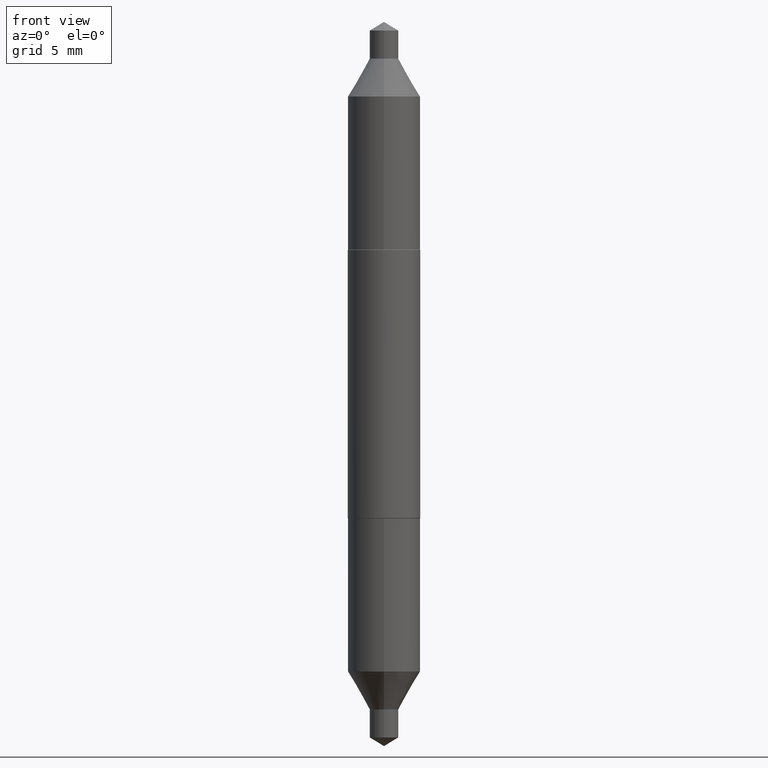
[diagram: clean part render]
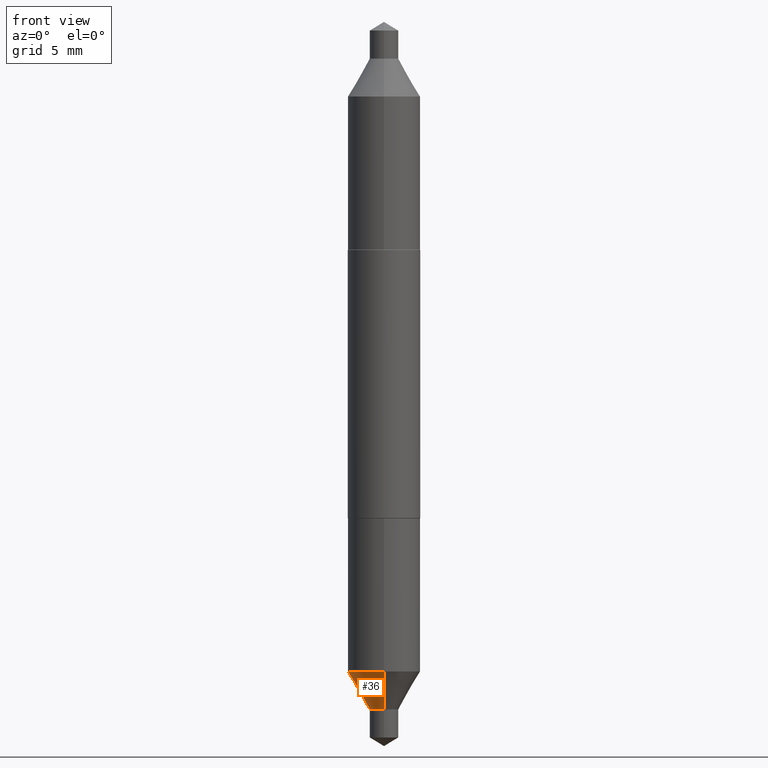
[diagram: same view with one face highlighted and labeled with its STEP entity id]
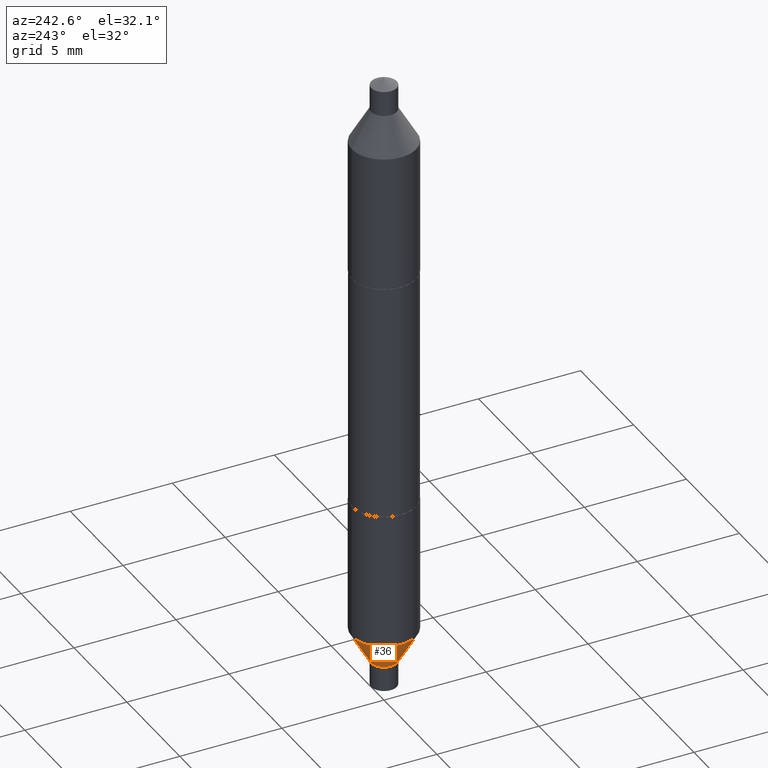
[diagram: same view with one face highlighted and labeled with its STEP entity id]
A machine part, front view. The second image highlights one B-rep face of the part: STEP entity #36.
A second angle (auxiliary view) of the same face is appended — the face is thin or edge-on in the first view.
In plain terms, the highlighted conical surface has half-angle 30 deg.
Its self-contained STEP definition (entity closure, byte-faithful):
#11 = EDGE_CURVE ( 'NONE', #676, #297, #248, .T. ) ;
#13 = EDGE_CURVE ( 'NONE', #179, #676, #324, .T. ) ;
#23 = CIRCLE ( 'NONE', #424, 0.02459999999999998646 ) ;
#28 = VERTEX_POINT ( 'NONE', #544 ) ;
#32 = ORIENTED_EDGE ( 'NONE', *, *, #640, .T. ) ;
#36 = ADVANCED_FACE ( 'NONE', ( #223 ), #411, .T. ) ;
#66 = CARTESIAN_POINT ( 'NONE',  ( 1.747935129969982313E-16, 0.02459999999999805745, -0.5570000000000000506 ) ) ;
#101 = DIRECTION ( 'NONE',  ( -2.473974349157782882E-29, 3.450659778871567200E-15, 1.000000000000000000 ) ) ;
#111 = DIRECTION ( 'NONE',  ( -2.473974349157782882E-29, 3.450659778871567200E-15, 1.000000000000000000 ) ) ;
#113 = AXIS2_PLACEMENT_3D ( 'NONE', #115, #332, #218 ) ;
#115 = CARTESIAN_POINT ( 'NONE',  ( 1.211186594922981775E-29, -1.707877200306588786E-15, -0.4922212997969229731 ) ) ;
#133 = DIRECTION ( 'NONE',  ( -3.491481338843115211E-15, -0.4999999999999913403, 0.8660254037844434816 ) ) ;
#179 = VERTEX_POINT ( 'NONE', #553 ) ;
#216 = VECTOR ( 'NONE', #133, 39.37007874015748854 ) ;
#218 = DIRECTION ( 'NONE',  ( -6.982962677686265922E-15, -1.000000000000000000, 3.304654831045479413E-15 ) ) ;
#223 = FACE_OUTER_BOUND ( 'NONE', #466, .T. ) ;
#243 = ORIENTED_EDGE ( 'NONE', *, *, #392, .T. ) ;
#245 = CARTESIAN_POINT ( 'NONE',  ( -4.329436860165363856E-16, -0.06200000000000171346, -0.4922212997969227510 ) ) ;
#248 = CIRCLE ( 'NONE', #113, 0.06200000000000000649 ) ;
#297 = VERTEX_POINT ( 'NONE', #245 ) ;
#324 = LINE ( 'NONE', #66, #702 ) ;
#332 = DIRECTION ( 'NONE',  ( -2.473974349157782882E-29, 3.450659778871567200E-15, 1.000000000000000000 ) ) ;
#392 = EDGE_CURVE ( 'NONE', #179, #28, #23, .T. ) ;
#411 = CONICAL_SURFACE ( 'NONE', #478, 0.02459999999999998646, 0.5235987755982924874 ) ;
#424 = AXIS2_PLACEMENT_3D ( 'NONE', #567, #101, #696 ) ;
#428 = DIRECTION ( 'NONE',  ( 3.552713678800440187E-15, 0.4999999999999974465, 0.8660254037844400399 ) ) ;
#452 = ORIENTED_EDGE ( 'NONE', *, *, #13, .F. ) ;
#466 = EDGE_LOOP ( 'NONE', ( #452, #243, #32, #577 ) ) ;
#476 = LINE ( 'NONE', #701, #216 ) ;
#477 = CARTESIAN_POINT ( 'NONE',  ( 1.371447437597176321E-29, -1.931406455624925954E-15, -0.5569999999999999396 ) ) ;
#478 = AXIS2_PLACEMENT_3D ( 'NONE', #477, #111, #591 ) ;
#544 = CARTESIAN_POINT ( 'NONE',  ( -1.717808818710683337E-16, -0.02460000000000191547, -0.5569999999999999396 ) ) ;
#553 = CARTESIAN_POINT ( 'NONE',  ( 1.747935129969994146E-16, 0.02459999999999805398, -0.5570000000000000506 ) ) ;
#558 = CARTESIAN_POINT ( 'NONE',  ( 4.405364961712710854E-16, 0.06199999999999830647, -0.4922212997969231396 ) ) ;
#567 = CARTESIAN_POINT ( 'NONE',  ( 1.371447437597176321E-29, -1.931406455624925954E-15, -0.5569999999999999396 ) ) ;
#577 = ORIENTED_EDGE ( 'NONE', *, *, #11, .F. ) ;
#591 = DIRECTION ( 'NONE',  ( -6.982962677686265922E-15, -1.000000000000000000, 2.776268286244171659E-15 ) ) ;
#640 = EDGE_CURVE ( 'NONE', #28, #297, #476, .T. ) ;
#676 = VERTEX_POINT ( 'NONE', #558 ) ;
#696 = DIRECTION ( 'NONE',  ( -6.982962677686265922E-15, -1.000000000000000000, 2.776268286244171659E-15 ) ) ;
#701 = CARTESIAN_POINT ( 'NONE',  ( -1.717808818710683337E-16, -0.02460000000000191547, -0.5569999999999999396 ) ) ;
#702 = VECTOR ( 'NONE', #428, 39.37007874015748854 ) ;